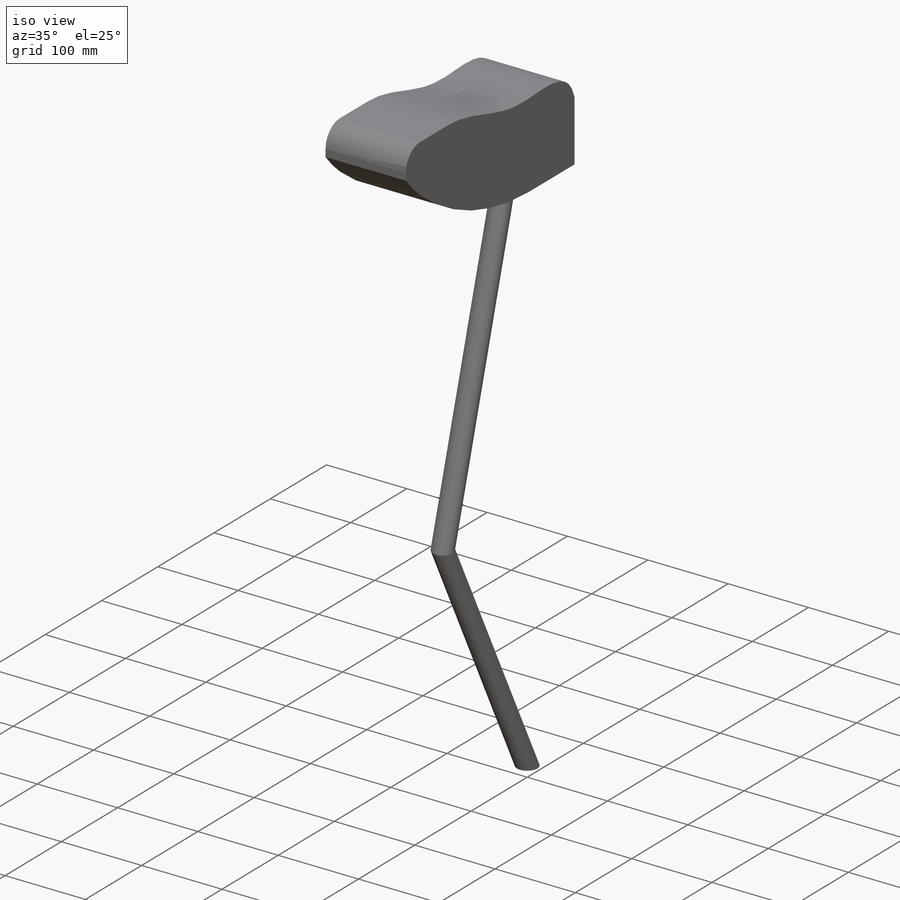
[diagram: iso view]
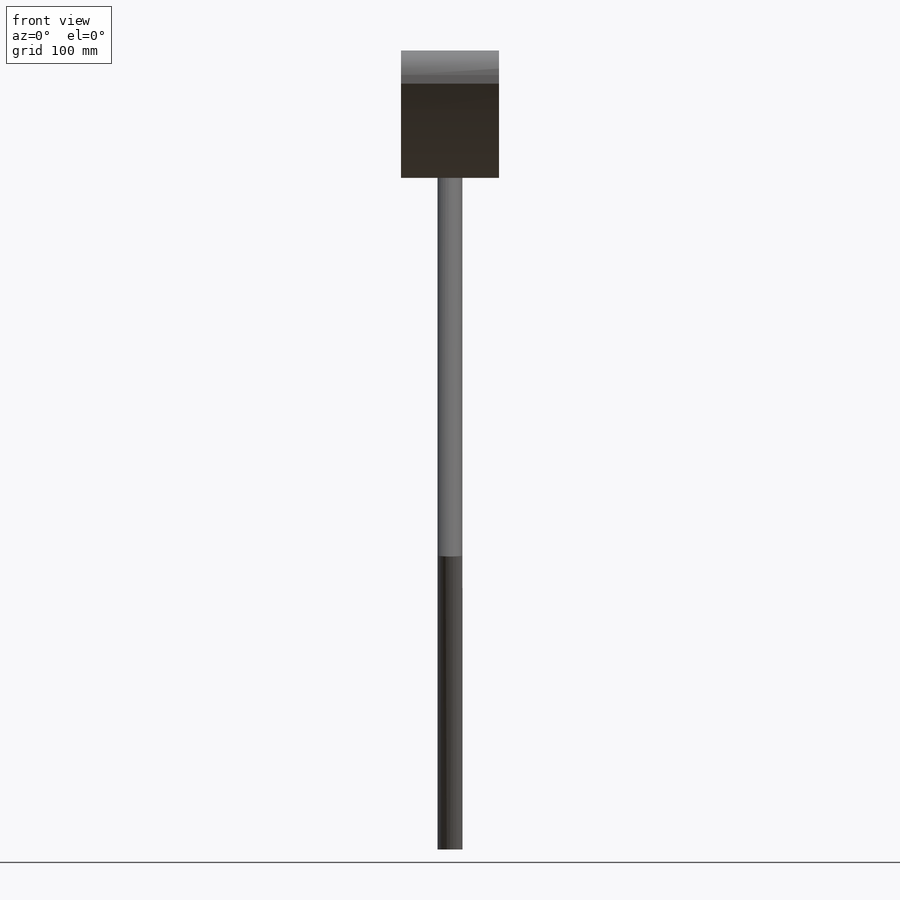
[diagram: front view]
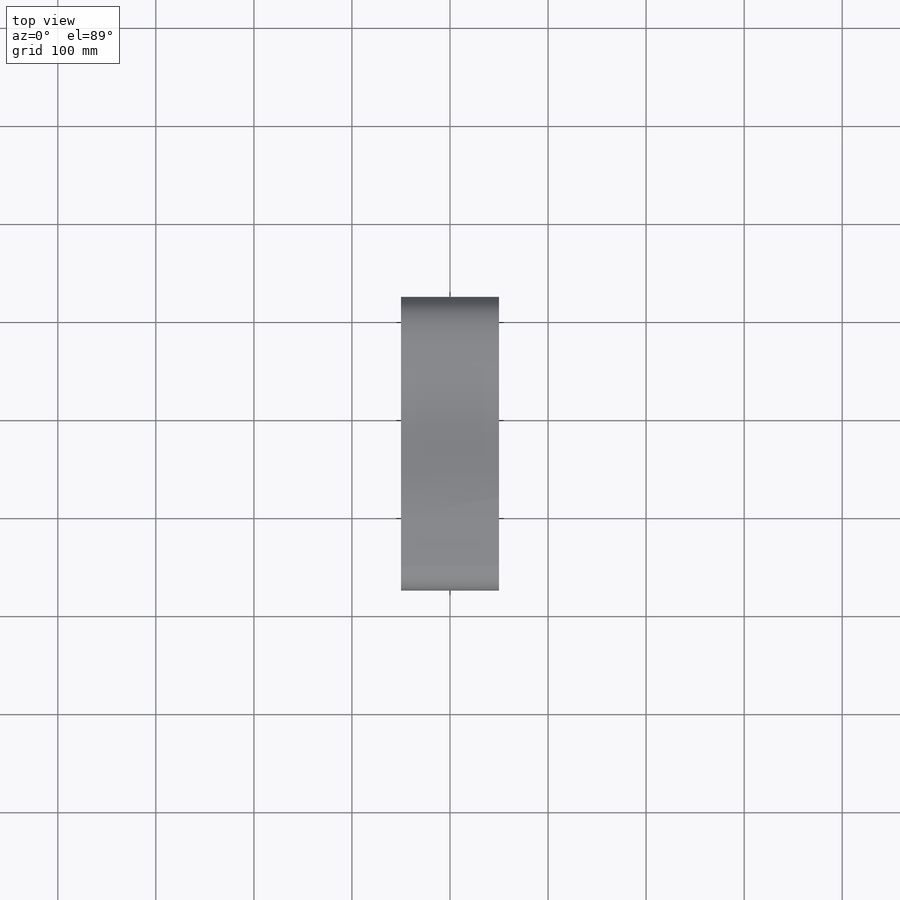
[diagram: top view]
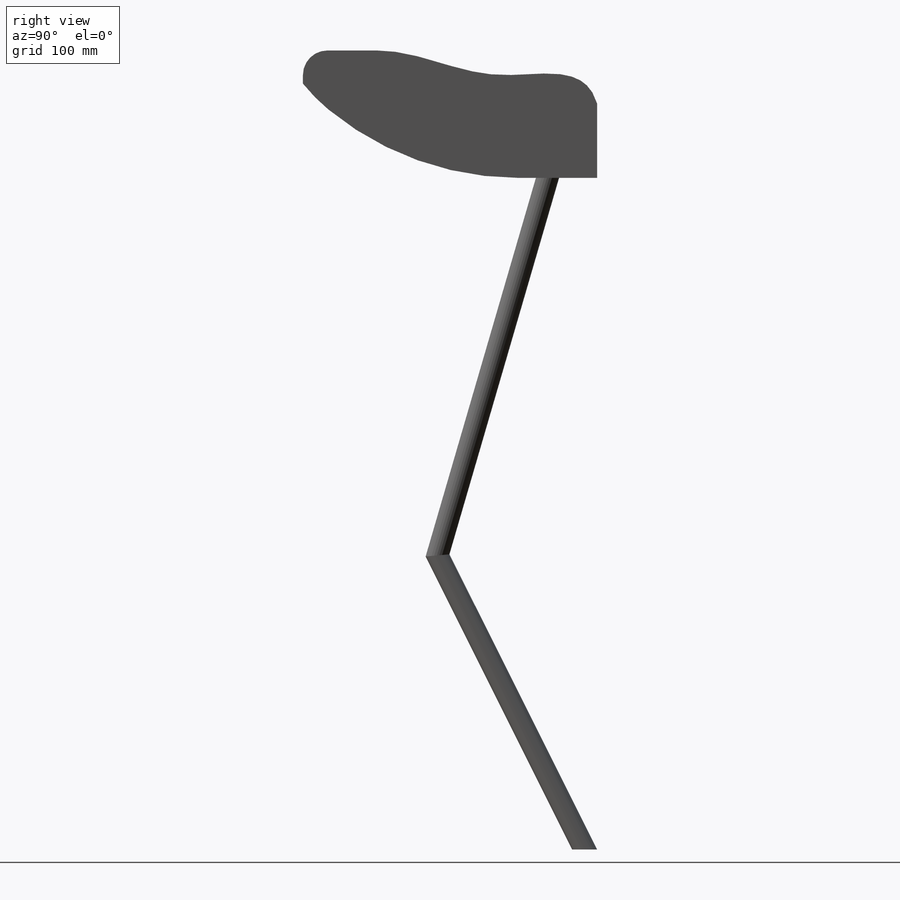
[diagram: right view]
SOLIDWORKS PART (.sldprt)
format: sldprt  version: not decoded by parser v0  size: 252,928 bytes
history: native  units: mm
features: sketch x7, cut_extrude x2, material x1, sweep x1, plane x1, extrude x1 (+13 scaffold rows collapsed)
feature tree (26):
  scaffold x13  (default folders/planes/origin — collapsed)
  material  "Material <not specified>"
  sketch  "Sketch7"  dims[D1=150.0mm D2=300.0mm D3=815.0mm D4=10.0mm]
  sketch  "Sketch1"  dims[D1=25.4mm]
  sweep  "Sweep3"
  plane  "Plane1"  Offset=815mm
  sketch  "Sketch8"
  cut_extrude  "Cut-Extrude2"  [1 undecoded]
  sketch  "Sketch2"
  sketch  "Sketch3"  dims[D1=50.0mm D2=50.0mm D3=300.0mm D4=12.7mm]
  extrude  "Boss-Extrude2"  Depth=130mm
  sketch  "Sketch5"  dims[c1.D3=~305.395698mm c1.D4=~177.428626mm c1.D1=50.0mm c1.D2=225.0mm c2.D1=10.0mm c2.D3=25.0mm c3.D1=50.0mm c3.D5=~25.988662mm c3.D6=~120.790946mm c3.D7=~138.851715mm c3.D8=~201.649929mm c3.D9=~220.252077mm c3.D10=~287.394335mm c3.D11=~335.810195mm c3.D12=~45.514709mm c4.D5=~25.988662mm c4.D6=~120.790946mm c4.D7=~138.851715mm c4.D8=~201.649929mm c4.D9=~287.394335mm c4.D10=~68.582097mm c4.D13=~6.972676mm c4.D14=~33.653555mm c4.D15=54.0931mm c4.D16=~175.742274mm c5.D13=~6.972676mm c5.D14=~33.653555mm]
  cut_extrude  "Cut-Extrude1"  [1 undecoded]
  sketch  "Sketch6"
decode coverage: 5 of 11 modeling features carry decoded parameters
note: ~ marks probable driven/reference dimensions
note: 2 parameter values undecoded
note: suppression state not decoded; provenance and decode notes live in map.json
